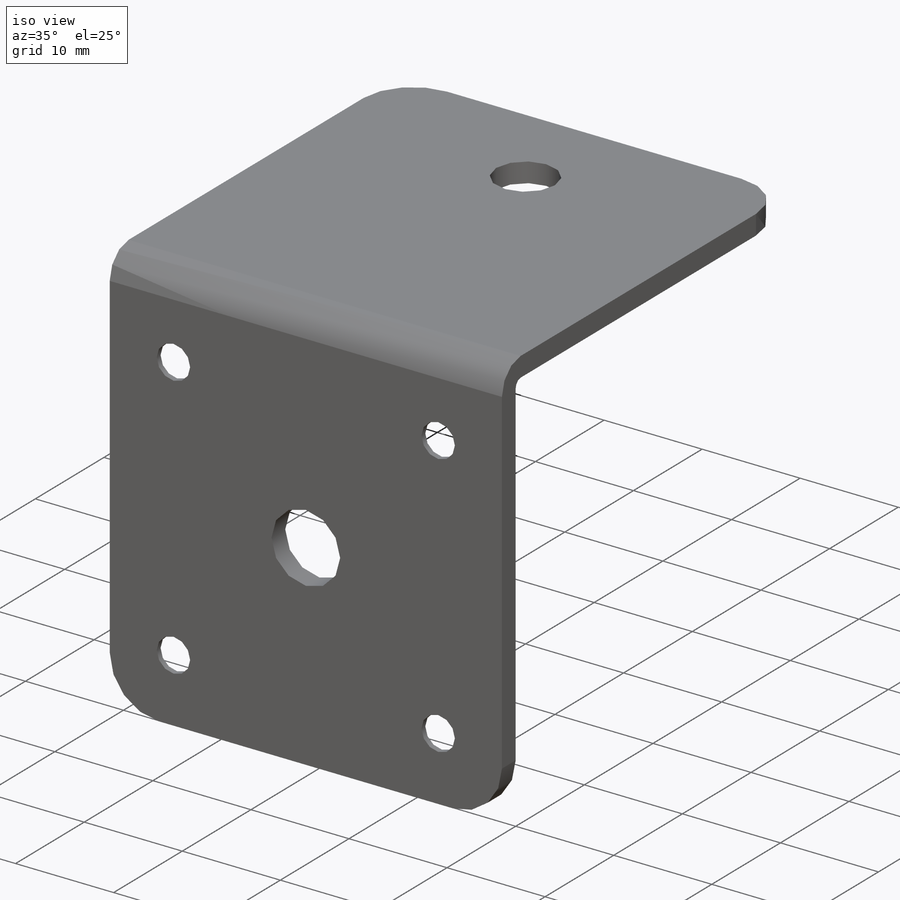
[diagram: iso view]
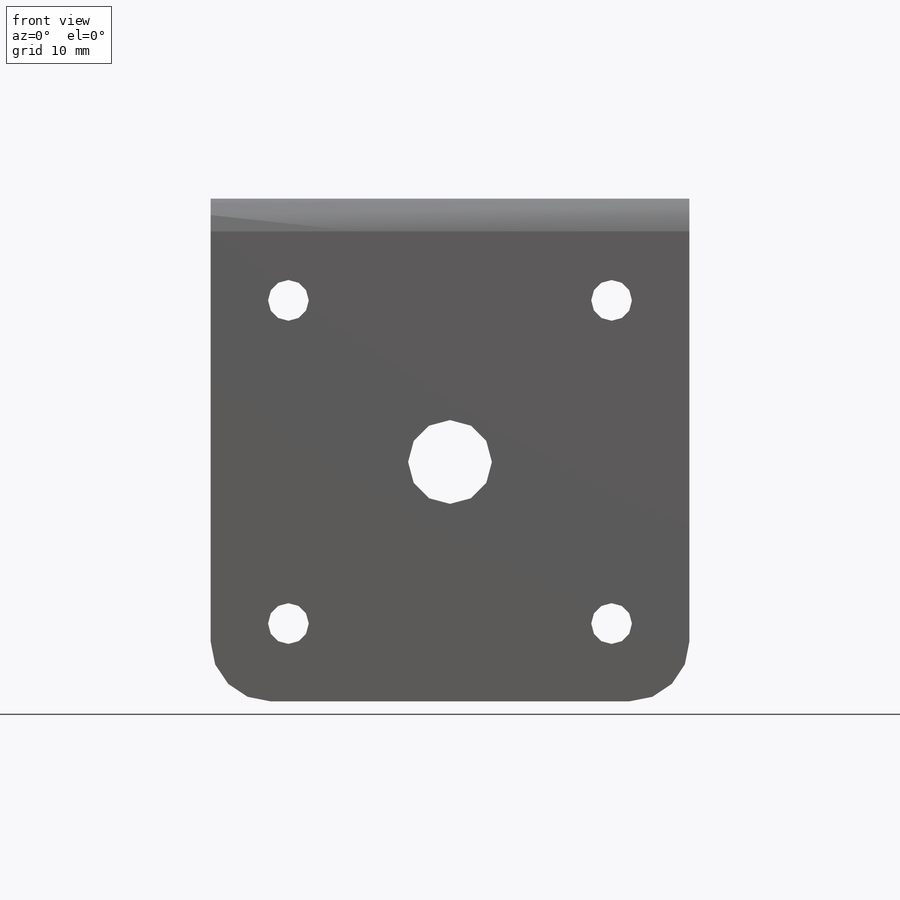
[diagram: front view]
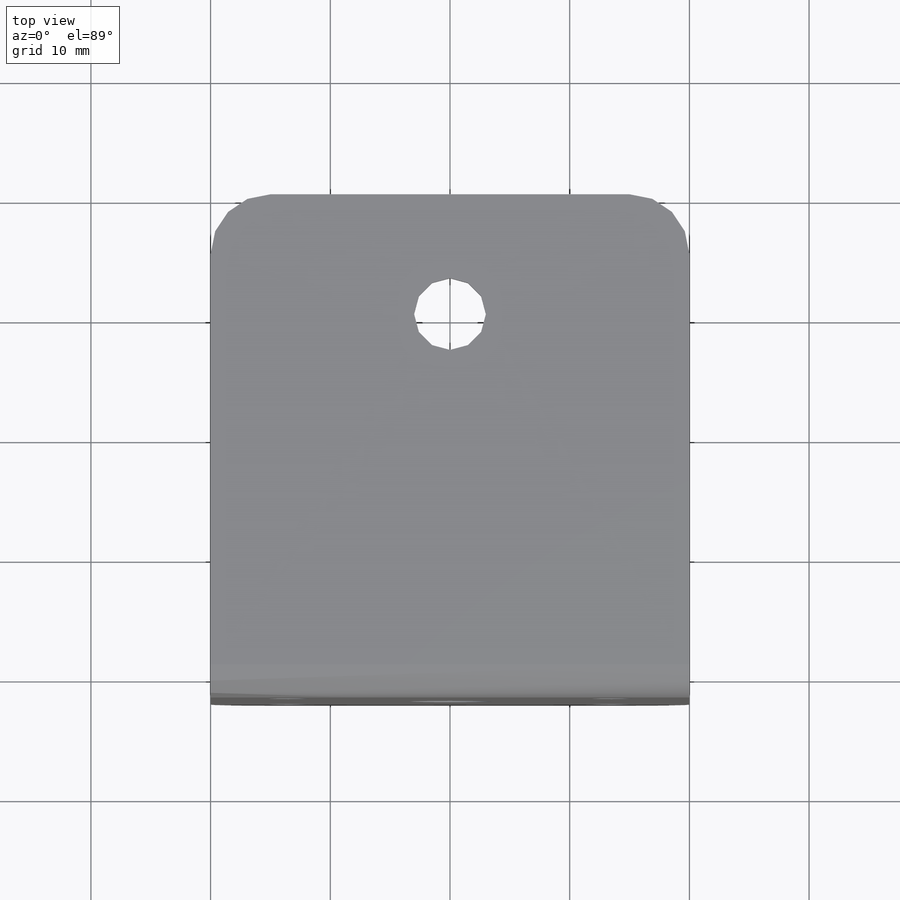
[diagram: top view]
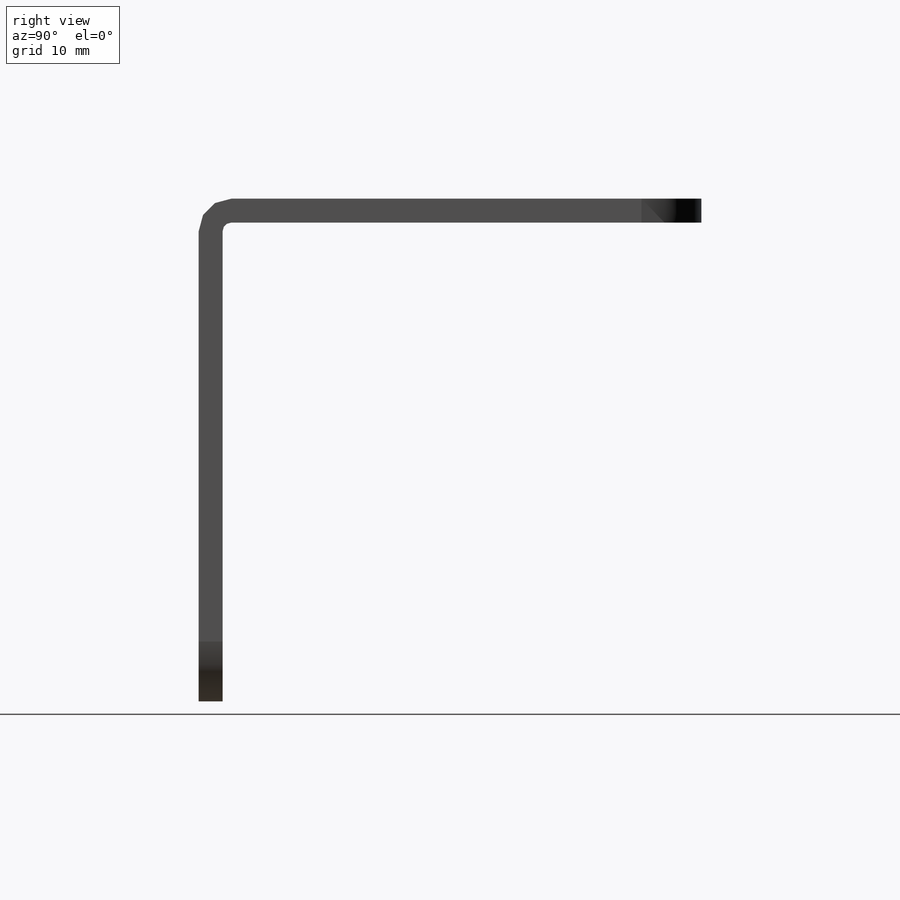
[diagram: right view]
SOLIDWORKS PART (.sldprt)
format: sldprt  version: not decoded by parser v0  size: 581,632 bytes
history: native  units: mm
features: sheet_metal_op x9, plane x3, sketch x2, hole x2, material x1, cut_extrude x1, fillet x1 + 1 further entry (+10 scaffold rows collapsed)
feature tree (30):
  scaffold x10  (default folders/planes/origin — collapsed)
  material  "AISI 304"
  plane  "前基準面"
  plane  "上基準面"
  plane  "右基準面"
  sketch  "草圖1"  dims[D1=40.0mm D2=10.0mm]
  sheet_metal_op  "鈑金1"
  sheet_metal_op  "基材-凸緣1"
  sheet_metal_op  "草圖3"
  cut_extrude  "除料-伸長1"  [1 undecoded]
  sheet_metal_op  "草圖6"
  fillet  "圓角1"  Radius=5mm
  hole  "M3 平錐坑頭螺釘的錐孔1"  [1 undecoded]
  sketch  "3D草圖1"  dims[c1.D1=~21.253616mm c1.D3=20.0mm c1.D2=~9.62972mm c2.D1=~9.62972mm c2.D3=20.0mm c3.D1=~20.05743mm c3.D4=20.0mm c3.D2=20.0mm c3.D3=20.0mm c4.D2=~9.572289mm c4.D3=~9.572289mm c5.D2=~19.45732mm c5.D3=27.0mm c6.D2=~9.572289mm c6.D5=13.5mm c6.D3=~11.163063mm c7.D5=13.5mm c7.D4=6.5mm c8.D5=6.5mm c8.D4=~9.885031mm c8.D2=13.5mm c9.D5=~11.912102mm c9.D8=13.5mm c9.D6=6.5mm c9.D7=20.0mm c9.D4=20.0mm c9.D3=27.0mm c9.D2=27.0mm c9.D1=20.0mm c10.D4=6.5mm c10.D5=20.0mm]
  sheet_metal_op  "草圖7"  4=25.4mm 貫穿孔直徑=3.4mm 貫穿孔深度=2mm 近端錐孔直徑=6.3mm
  hole  "Ø7.0 (7) 直徑孔1"  [1 undecoded]
  sheet_metal_op  "草圖9"
  sheet_metal_op  "草圖8"  4=25.4mm 鑽孔直徑=7mm 鑽孔深度=2mm
  "平板-型式1"
  sheet_metal_op  "彎折-線1"
  sheet_metal_op  "邊界方塊1"
decode coverage: 5 of 15 modeling features carry decoded parameters; 1 rows unclassified (native names shown)
note: ~ marks probable driven/reference dimensions
note: 3 parameter values undecoded
summary: no parameter record found for 3 features
note: suppression state not decoded; provenance and decode notes live in map.json
